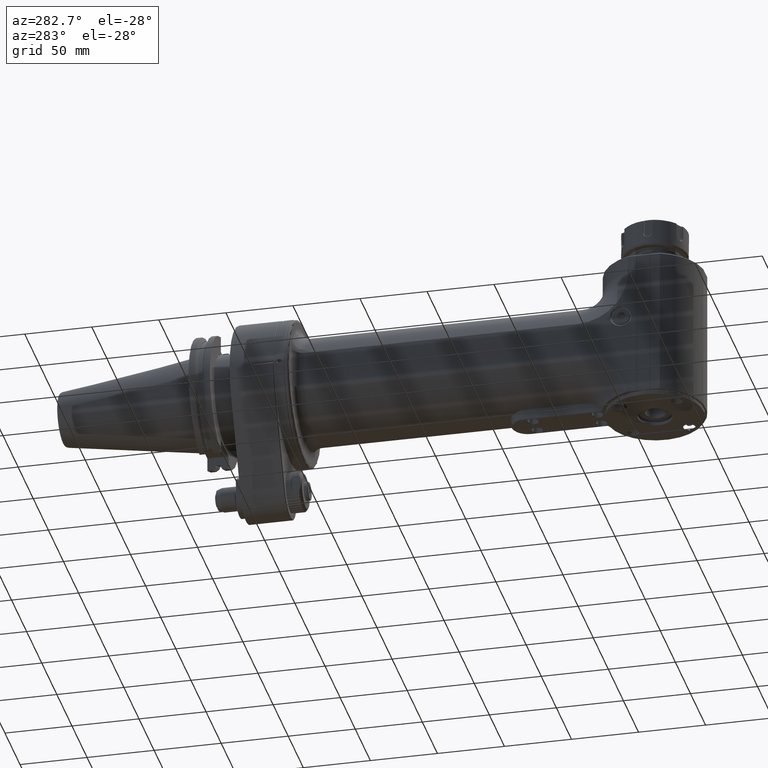
[diagram: clean part render]
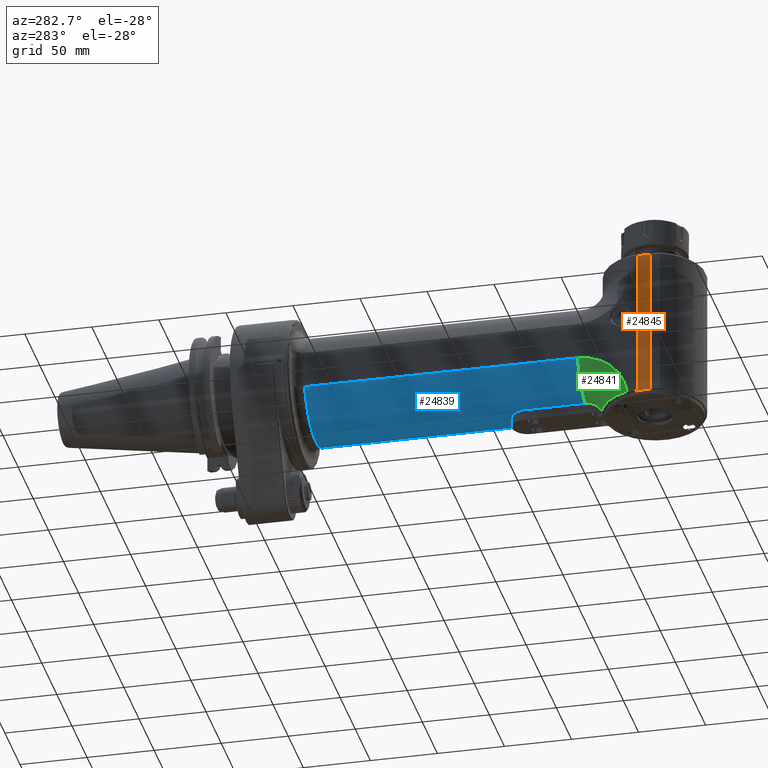
[diagram: same view with three faces highlighted in distinct colors, each labeled with its STEP entity id]
A machine part, auxiliary view with three faces highlighted in distinct colors.
Their STEP definitions:

[orange] entity #24845 — the highlighted planar face has unit normal (1, 0, 0).
#954=LINE('',#37207,#3367);
#957=LINE('',#37212,#3370);
#958=LINE('',#37214,#3371);
#959=LINE('',#37215,#3372);
#3367=VECTOR('',#29136,111.1);
#3370=VECTOR('',#29141,9.2);
#3371=VECTOR('',#29142,111.1);
#3372=VECTOR('',#29143,9.2);
#6182=FACE_OUTER_BOUND('',#7646,.T.);
#7646=EDGE_LOOP('',(#16770,#16771,#16772,#16773));
#10207=VERTEX_POINT('',#37205);
#10208=VERTEX_POINT('',#37206);
#10209=VERTEX_POINT('',#37211);
#10210=VERTEX_POINT('',#37213);
#12785=EDGE_CURVE('',#10207,#10208,#954,.T.);
#12788=EDGE_CURVE('',#10209,#10208,#957,.T.);
#12789=EDGE_CURVE('',#10210,#10209,#958,.T.);
#12790=EDGE_CURVE('',#10210,#10207,#959,.T.);
#16770=ORIENTED_EDGE('',*,*,#12785,.T.);
#16771=ORIENTED_EDGE('',*,*,#12788,.F.);
#16772=ORIENTED_EDGE('',*,*,#12789,.F.);
#16773=ORIENTED_EDGE('',*,*,#12790,.T.);
#23926=PLANE('',#26482);
#24845=ADVANCED_FACE('',(#6182),#23926,.F.);
#26482=AXIS2_PLACEMENT_3D('',#37210,#29139,#29140);
#29136=DIRECTION('',(0.,0.,-1.));
#29139=DIRECTION('center_axis',(1.,0.,0.));
#29140=DIRECTION('ref_axis',(0.,1.,0.));
#29141=DIRECTION('',(0.,1.,0.));
#29142=DIRECTION('',(0.,0.,-1.));
#29143=DIRECTION('',(0.,1.,0.));
#37205=CARTESIAN_POINT('',(-37.4,4.6,65.1));
#37206=CARTESIAN_POINT('',(-37.4,4.6,-46.));
#37207=CARTESIAN_POINT('',(-37.4,4.6,65.1));
#37210=CARTESIAN_POINT('Origin',(-37.4,272.,-67.1));
#37211=CARTESIAN_POINT('',(-37.4,-4.6,-46.));
#37212=CARTESIAN_POINT('',(-37.4,-4.6,-46.));
#37213=CARTESIAN_POINT('',(-37.4,-4.6,65.1));
#37214=CARTESIAN_POINT('',(-37.4,-4.6,65.1));
#37215=CARTESIAN_POINT('',(-37.4,-4.6,65.1));

[blue] entity #24839 — the highlighted cylindrical surface (partial cylindrical patch) has radius 40 mm, axis along (0, -1, 0).
#372=B_SPLINE_CURVE_WITH_KNOTS('',3,(#36826,#36827,#36828,#36829,#36830,
#36831,#36832,#36833,#36834,#36835,#36836,#36837,#36838,#36839,#36840,#36841,
#36842,#36843,#36844,#36845,#36846,#36847,#36848,#36849,#36850,#36851,#36852,
#36853,#36854,#36855,#36856,#36857,#36858,#36859,#36860,#36861,#36862,#36863,
#36864,#36865,#36866,#36867,#36868,#36869,#36870,#36871,#36872,#36873,#36874,
#36875,#36876,#36877,#36878,#36879,#36880,#36881,#36882,#36883,#36884,#36885,
#36886,#36887,#36888,#36889,#36890,#36891,#36892,#36893,#36894,#36895,#36896,
#36897,#36898,#36899,#36900,#36901,#36902,#36903,#36904,#36905,#36906,#36907,
#36908,#36909,#36910,#36911,#36912,#36913,#36914,#36915,#36916,#36917,#36918,
#36919,#36920,#36921,#36922,#36923,#36924,#36925,#36926,#36927,#36928,#36929,
#36930,#36931,#36932,#36933,#36934,#36935,#36936,#36937,#36938,#36939,#36940,
#36941,#36942,#36943,#36944,#36945,#36946,#36947,#36948,#36949,#36950,#36951,
#36952,#36953,#36954,#36955,#36956,#36957,#36958,#36959,#36960,#36961,#36962,
#36963,#36964,#36965,#36966,#36967,#36968,#36969,#36970,#36971,#36972,#36973,
#36974,#36975,#36976,#36977,#36978,#36979,#36980,#36981,#36982,#36983,#36984,
#36985,#36986,#36987,#36988,#36989,#36990,#36991,#36992,#36993,#36994,#36995,
#36996,#36997,#36998,#36999,#37000,#37001,#37002,#37003,#37004,#37005,#37006,
#37007,#37008,#37009,#37010,#37011,#37012,#37013,#37014,#37015,#37016,#37017,
#37018,#37019,#37020,#37021,#37022,#37023,#37024,#37025,#37026,#37027,#37028,
#37029,#37030,#37031,#37032,#37033),.UNSPECIFIED.,.F.,.F.,(4,3,3,3,3,3,
3,3,3,3,3,3,3,3,3,3,3,3,3,3,3,3,3,3,3,3,3,3,3,3,3,3,3,3,3,3,3,3,3,3,3,3,
3,3,3,3,3,3,3,3,3,3,3,3,3,3,3,3,3,3,3,3,3,3,3,3,3,3,3,4),(0.,0.01449275362319,
0.02898550724638,0.04347826086957,0.05797101449275,0.07246376811594,0.08695652173913,
0.1014492753623,0.1159420289855,0.1304347826087,0.1449275362319,0.1594202898551,
0.1739130434783,0.1884057971014,0.2028985507246,0.2173913043478,0.231884057971,
0.2463768115942,0.2608695652174,0.2753623188406,0.2898550724638,0.304347826087,
0.3188405797101,0.3333333333333,0.3478260869565,0.3623188405797,0.3768115942029,
0.3913043478261,0.4057971014493,0.4202898550725,0.4347826086957,0.4492753623188,
0.463768115942,0.4782608695652,0.4927536231884,0.5072463768116,0.5217391304348,
0.536231884058,0.5507246376812,0.5652173913043,0.5797101449275,0.5942028985507,
0.6086956521739,0.6231884057971,0.6376811594203,0.6521739130435,0.6666666666667,
0.6811594202899,0.695652173913,0.7101449275362,0.7246376811594,0.7391304347826,
0.7536231884058,0.768115942029,0.7826086956522,0.7971014492754,0.8115942028986,
0.8260869565217,0.8405797101449,0.8550724637681,0.8695652173913,0.8840579710145,
0.8985507246377,0.9130434782609,0.9275362318841,0.9420289855072,0.9565217391304,
0.9710144927536,0.9855072463768,1.),.UNSPECIFIED.);
#937=LINE('',#37037,#3350);
#940=LINE('',#37045,#3353);
#941=LINE('',#37049,#3354);
#942=LINE('',#37053,#3355);
#3350=VECTOR('',#29091,45.5);
#3353=VECTOR('',#29098,45.5);
#3354=VECTOR('',#29101,203.5);
#3355=VECTOR('',#29104,203.5);
#5717=CYLINDRICAL_SURFACE('',#26469,40.);
#6176=FACE_OUTER_BOUND('',#7639,.T.);
#7639=EDGE_LOOP('',(#16734,#16735,#16736,#16737,#16738,#16739,#16740,#16741));
#9229=CIRCLE('',#26470,40.);
#9230=CIRCLE('',#26471,40.);
#9231=CIRCLE('',#26472,40.);
#10185=VERTEX_POINT('',#36823);
#10186=VERTEX_POINT('',#36825);
#10187=VERTEX_POINT('',#37036);
#10190=VERTEX_POINT('',#37044);
#10191=VERTEX_POINT('',#37046);
#10192=VERTEX_POINT('',#37048);
#10193=VERTEX_POINT('',#37050);
#10194=VERTEX_POINT('',#37052);
#12757=EDGE_CURVE('',#10186,#10185,#372,.T.);
#12759=EDGE_CURVE('',#10186,#10187,#937,.T.);
#12763=EDGE_CURVE('',#10185,#10190,#940,.T.);
#12764=EDGE_CURVE('',#10191,#10190,#9229,.T.);
#12765=EDGE_CURVE('',#10192,#10191,#941,.T.);
#12766=EDGE_CURVE('',#10192,#10193,#9230,.T.);
#12767=EDGE_CURVE('',#10193,#10194,#942,.T.);
#12768=EDGE_CURVE('',#10187,#10194,#9231,.T.);
#16734=ORIENTED_EDGE('',*,*,#12763,.T.);
#16735=ORIENTED_EDGE('',*,*,#12764,.F.);
#16736=ORIENTED_EDGE('',*,*,#12765,.F.);
#16737=ORIENTED_EDGE('',*,*,#12766,.T.);
#16738=ORIENTED_EDGE('',*,*,#12767,.T.);
#16739=ORIENTED_EDGE('',*,*,#12768,.F.);
#16740=ORIENTED_EDGE('',*,*,#12759,.F.);
#16741=ORIENTED_EDGE('',*,*,#12757,.T.);
#24839=ADVANCED_FACE('',(#6176),#5717,.T.);
#26469=AXIS2_PLACEMENT_3D('',#37043,#29096,#29097);
#26470=AXIS2_PLACEMENT_3D('',#37047,#29099,#29100);
#26471=AXIS2_PLACEMENT_3D('',#37051,#29102,#29103);
#26472=AXIS2_PLACEMENT_3D('',#37054,#29105,#29106);
#29091=DIRECTION('',(0.,-1.,0.));
#29096=DIRECTION('center_axis',(0.,-1.,0.));
#29097=DIRECTION('ref_axis',(-1.,0.,0.));
#29098=DIRECTION('',(0.,-1.,0.));
#29099=DIRECTION('center_axis',(0.,-1.,0.));
#29100=DIRECTION('ref_axis',(-0.937499999999992,0.,-0.347985272676897));
#29101=DIRECTION('',(0.,-1.,0.));
#29102=DIRECTION('center_axis',(0.,-1.,0.));
#29103=DIRECTION('ref_axis',(-0.937499999999992,0.,-0.347985272676897));
#29104=DIRECTION('',(0.,-1.,0.));
#29105=DIRECTION('center_axis',(0.,-1.,0.));
#29106=DIRECTION('ref_axis',(0.300000000000013,0.,-0.953939201416942));
#36823=CARTESIAN_POINT('',(-12.,95.,-38.15756805668));
#36825=CARTESIAN_POINT('',(12.,95.,-38.15756805668));
#36826=CARTESIAN_POINT('Ctrl Pts',(12.,95.,-38.15756805668));
#36827=CARTESIAN_POINT('Ctrl Pts',(12.,95.17828162213,-38.15756805668));
#36828=CARTESIAN_POINT('Ctrl Pts',(11.9960269253425,95.3566534644559,-38.158817857315));
#36829=CARTESIAN_POINT('Ctrl Pts',(11.9880689181919,95.5349800114774,-38.1613181587408));
#36830=CARTESIAN_POINT('Ctrl Pts',(11.9801109110414,95.713306558499,-38.1638184601667));
#36831=CARTESIAN_POINT('Ctrl Pts',(11.9681654460002,95.8915877905336,-38.1675692623833));
#36832=CARTESIAN_POINT('Ctrl Pts',(11.9522437067562,96.0695187582768,-38.1725538885483));
#36833=CARTESIAN_POINT('Ctrl Pts',(11.9363219675122,96.2474497260199,-38.1775385147133));
#36834=CARTESIAN_POINT('Ctrl Pts',(11.9164295127498,96.4250309066801,-38.1837569648267));
#36835=CARTESIAN_POINT('Ctrl Pts',(11.8925413737978,96.6023294519251,-38.19119610162));
#36836=CARTESIAN_POINT('Ctrl Pts',(11.8686532348459,96.7796279971699,-38.1986352384133));
#36837=CARTESIAN_POINT('Ctrl Pts',(11.8407651750236,96.9566432438988,-38.2072950618867));
#36838=CARTESIAN_POINT('Ctrl Pts',(11.8088802922367,97.1331540599835,-38.217147280295));
#36839=CARTESIAN_POINT('Ctrl Pts',(11.7769954094498,97.3096648760684,-38.2269994987033));
#36840=CARTESIAN_POINT('Ctrl Pts',(11.7411137874494,97.4856714211916,-38.2380441120467));
#36841=CARTESIAN_POINT('Ctrl Pts',(11.7012515291149,97.6609608513441,-38.2502380731467));
#36842=CARTESIAN_POINT('Ctrl Pts',(11.6613892707804,97.8362502814966,-38.2624320342467));
#36843=CARTESIAN_POINT('Ctrl Pts',(11.6175502526625,98.010823366892,-38.2757753431034));
#36844=CARTESIAN_POINT('Ctrl Pts',(11.5696828194871,98.184719682557,-38.2902394802717));
#36845=CARTESIAN_POINT('Ctrl Pts',(11.5218153863117,98.3586159982218,-38.30470361744));
#36846=CARTESIAN_POINT('Ctrl Pts',(11.4699135484473,98.5318339032932,-38.32028858292));
#36847=CARTESIAN_POINT('Ctrl Pts',(11.4140391213967,98.7040128152079,-38.3369235976933));
#36848=CARTESIAN_POINT('Ctrl Pts',(11.3581646943461,98.876191727123,-38.3535586124666));
#36849=CARTESIAN_POINT('Ctrl Pts',(11.2983217555625,99.0473330702936,-38.3712436765333));
#36850=CARTESIAN_POINT('Ctrl Pts',(11.2344982950864,99.2173508340782,-38.38992117806));
#36851=CARTESIAN_POINT('Ctrl Pts',(11.1706748346103,99.3873685978628,-38.4085986795867));
#36852=CARTESIAN_POINT('Ctrl Pts',(11.1028702037919,99.5562623820452,-38.4282686185733));
#36853=CARTESIAN_POINT('Ctrl Pts',(11.0310843904433,99.7238942802436,-38.4488644457933));
#36854=CARTESIAN_POINT('Ctrl Pts',(10.9592985770947,99.8915261784419,-38.4694602730133));
#36855=CARTESIAN_POINT('Ctrl Pts',(10.8835279565226,100.057894767174,-38.4909819884667));
#36856=CARTESIAN_POINT('Ctrl Pts',(10.8038932070683,100.222632628308,-38.5133209626217));
#36857=CARTESIAN_POINT('Ctrl Pts',(10.7242584576139,100.387370489442,-38.5356599367767));
#36858=CARTESIAN_POINT('Ctrl Pts',(10.6407649171188,100.55048017883,-38.5588161696333));
#36859=CARTESIAN_POINT('Ctrl Pts',(10.5533730950184,100.711945055525,-38.5827204369667));
#36860=CARTESIAN_POINT('Ctrl Pts',(10.465981272918,100.873409932221,-38.6066247043001));
#36861=CARTESIAN_POINT('Ctrl Pts',(10.3746865753418,101.033227402167,-38.6312770061101));
#36862=CARTESIAN_POINT('Ctrl Pts',(10.2796188402135,101.191077167984,-38.6565574838218));
#36863=CARTESIAN_POINT('Ctrl Pts',(10.1845511050859,101.348926933799,-38.6818379615334));
#36864=CARTESIAN_POINT('Ctrl Pts',(10.0857107981244,101.504809462694,-38.7077466151466));
#36865=CARTESIAN_POINT('Ctrl Pts',(9.98323454553868,101.658455377095,-38.7341584135848));
#36866=CARTESIAN_POINT('Ctrl Pts',(9.88075829295222,101.812101291497,-38.7605702120232));
#36867=CARTESIAN_POINT('Ctrl Pts',(9.7746493326664,101.963512598043,-38.7874851552866));
#36868=CARTESIAN_POINT('Ctrl Pts',(9.66491261451266,102.11262709228,-38.8148098559516));
#36869=CARTESIAN_POINT('Ctrl Pts',(9.55517589635892,102.261741586517,-38.8421345566167));
#36870=CARTESIAN_POINT('Ctrl Pts',(9.44180625818103,102.408555499324,-38.8698690146833));
#36871=CARTESIAN_POINT('Ctrl Pts',(9.32507173377688,102.552684103014,-38.8978538888733));
#36872=CARTESIAN_POINT('Ctrl Pts',(9.20833720937273,102.696812706703,-38.9258387630633));
#36873=CARTESIAN_POINT('Ctrl Pts',(9.08824167597421,102.838259257739,-38.9540740533767));
#36874=CARTESIAN_POINT('Ctrl Pts',(8.96486976302807,102.976911064563,-38.9824461794317));
#36875=CARTESIAN_POINT('Ctrl Pts',(8.84149785008193,103.115562871387,-39.0108183054867));
#36876=CARTESIAN_POINT('Ctrl Pts',(8.71484863845316,103.251418911952,-39.0393272672833));
#36877=CARTESIAN_POINT('Ctrl Pts',(8.58507075137073,103.384304395354,-39.0678456047133));
#36878=CARTESIAN_POINT('Ctrl Pts',(8.4552928642883,103.517189878756,-39.0963639421433));
#36879=CARTESIAN_POINT('Ctrl Pts',(8.3223838782151,103.647102625904,-39.1248916552067));
#36880=CARTESIAN_POINT('Ctrl Pts',(8.18666389027169,103.773741183083,-39.153269778495));
#36881=CARTESIAN_POINT('Ctrl Pts',(8.05094390232828,103.900379740261,-39.1816479017833));
#36882=CARTESIAN_POINT('Ctrl Pts',(7.91241716777237,104.023748618714,-39.2098764352967));
#36883=CARTESIAN_POINT('Ctrl Pts',(7.77112151101372,104.143832372756,-39.237860166695));
#36884=CARTESIAN_POINT('Ctrl Pts',(7.62982585425507,104.263916126798,-39.2658438980933));
#36885=CARTESIAN_POINT('Ctrl Pts',(7.48575798333567,104.380710745131,-39.2935828273767));
#36886=CARTESIAN_POINT('Ctrl Pts',(7.33921774692472,104.493991935073,-39.3209344098417));
#36887=CARTESIAN_POINT('Ctrl Pts',(7.19267751051377,104.607273125015,-39.3482859923067));
#36888=CARTESIAN_POINT('Ctrl Pts',(7.04366552748774,104.71704194788,-39.3752502279535));
#36889=CARTESIAN_POINT('Ctrl Pts',(6.8924394329943,104.823150139467,-39.4017040070902));
#36890=CARTESIAN_POINT('Ctrl Pts',(6.7412133385019,104.929258331053,-39.4281577862267));
#36891=CARTESIAN_POINT('Ctrl Pts',(6.58777543674959,105.031708946563,-39.4541011088533));
#36892=CARTESIAN_POINT('Ctrl Pts',(6.43218071700992,105.130501035177,-39.4794509995248));
#36893=CARTESIAN_POINT('Ctrl Pts',(6.27658599726919,105.229293123793,-39.5048008901966));
#36894=CARTESIAN_POINT('Ctrl Pts',(6.11883121708451,105.324421641927,-39.5295573489133));
#36895=CARTESIAN_POINT('Ctrl Pts',(5.95930871909655,105.415691988077,-39.5535919935266));
#36896=CARTESIAN_POINT('Ctrl Pts',(5.79978622110859,105.506962334228,-39.57762663814));
#36897=CARTESIAN_POINT('Ctrl Pts',(5.63849872005813,105.594379407782,-39.60093946865));
#36898=CARTESIAN_POINT('Ctrl Pts',(5.47552913375442,105.677948337832,-39.6234599789733));
#36899=CARTESIAN_POINT('Ctrl Pts',(5.31255954745072,105.761517267882,-39.6459804892967));
#36900=CARTESIAN_POINT('Ctrl Pts',(5.14790719300999,105.841236402417,-39.6677086794333));
#36901=CARTESIAN_POINT('Ctrl Pts',(4.981754998209,105.917056248725,-39.688564059915));
#36902=CARTESIAN_POINT('Ctrl Pts',(4.81560280340801,105.992876095033,-39.7094194403967));
#36903=CARTESIAN_POINT('Ctrl Pts',(4.64794960348165,106.064794429742,-39.7294020112233));
#36904=CARTESIAN_POINT('Ctrl Pts',(4.47913582638464,106.13271495408,-39.7484256574883));
#36905=CARTESIAN_POINT('Ctrl Pts',(4.31032204928762,106.200635478418,-39.7674493037533));
#36906=CARTESIAN_POINT('Ctrl Pts',(4.14034997054097,106.264563722507,-39.7855140254567));
#36907=CARTESIAN_POINT('Ctrl Pts',(3.969192266983,106.324553534145,-39.8025817347033));
#36908=CARTESIAN_POINT('Ctrl Pts',(3.79803456342502,106.384543345783,-39.81964944395));
#36909=CARTESIAN_POINT('Ctrl Pts',(3.62568957130576,106.440589761559,-39.83572014074));
#36910=CARTESIAN_POINT('Ctrl Pts',(3.4524536481189,106.492630847965,-39.8507285229217));
#36911=CARTESIAN_POINT('Ctrl Pts',(3.27921772493205,106.544671934371,-39.8657369051033));
#36912=CARTESIAN_POINT('Ctrl Pts',(3.10509125375529,106.592709465304,-39.8796829726767));
#36913=CARTESIAN_POINT('Ctrl Pts',(2.93025913627618,106.636734137818,-39.89252538251));
#36914=CARTESIAN_POINT('Ctrl Pts',(2.75542701879707,106.680758810333,-39.9053677923434));
#36915=CARTESIAN_POINT('Ctrl Pts',(2.57989010793835,106.720773474308,-39.9171065444367));
#36916=CARTESIAN_POINT('Ctrl Pts',(2.4036365211513,106.756807877744,-39.9277163318217));
#36917=CARTESIAN_POINT('Ctrl Pts',(2.22738293436548,106.79284228118,-39.9383261192067));
#36918=CARTESIAN_POINT('Ctrl Pts',(2.05041149926954,106.824890925715,-39.9478069418833));
#36919=CARTESIAN_POINT('Ctrl Pts',(1.87307734365465,106.852914462894,-39.9561206983966));
#36920=CARTESIAN_POINT('Ctrl Pts',(1.69574318803853,106.880938000074,-39.96443445491));
#36921=CARTESIAN_POINT('Ctrl Pts',(1.51804712544984,106.904941954382,-39.97158114526));
#36922=CARTESIAN_POINT('Ctrl Pts',(1.3399751368083,106.924951431043,-39.9775495326133));
#36923=CARTESIAN_POINT('Ctrl Pts',(1.16190314816675,106.944960907704,-39.9835179199667));
#36924=CARTESIAN_POINT('Ctrl Pts',(0.983455104694678,106.960973552808,-39.9883080043233));
#36925=CARTESIAN_POINT('Ctrl Pts',(0.804770955318886,106.972983910015,-39.9919034769483));
#36926=CARTESIAN_POINT('Ctrl Pts',(0.626086805943093,106.984994267222,-39.9954989495733));
#36927=CARTESIAN_POINT('Ctrl Pts',(0.447166273153922,106.993000241197,-39.9978998104667));
#36928=CARTESIAN_POINT('Ctrl Pts',(0.268290731449832,106.997000461925,-39.9991002409233));
#36929=CARTESIAN_POINT('Ctrl Pts',(0.0894151897457412,107.001000682653,
-40.00030067138));
#36930=CARTESIAN_POINT('Ctrl Pts',(-0.0894151793028224,107.001000682723,
-40.0003006714));
#36931=CARTESIAN_POINT('Ctrl Pts',(-0.268290720536314,106.997000462169,
-39.9991002409983));
#36932=CARTESIAN_POINT('Ctrl Pts',(-0.447166261769805,106.993000241614,
-39.9978998105967));
#36933=CARTESIAN_POINT('Ctrl Pts',(-0.626086793614925,106.984994267868,
-39.9954989497733));
#36934=CARTESIAN_POINT('Ctrl Pts',(-0.804770943116894,106.972983910835,
-39.991903477195));
#36935=CARTESIAN_POINT('Ctrl Pts',(-0.983455092618864,106.960973553802,
-39.9883080046167));
#36936=CARTESIAN_POINT('Ctrl Pts',(-1.16190313728617,106.944960908773,-39.9835179202833));
#36937=CARTESIAN_POINT('Ctrl Pts',(-1.33997512666296,106.924951432183,-39.9775495329567));
#36938=CARTESIAN_POINT('Ctrl Pts',(-1.51804711603974,106.904941955593,-39.97158114563));
#36939=CARTESIAN_POINT('Ctrl Pts',(-1.69574317890995,106.880938001411,-39.96443445531));
#36940=CARTESIAN_POINT('Ctrl Pts',(-1.8730773367727,106.852914463982,-39.9561206987199));
#36941=CARTESIAN_POINT('Ctrl Pts',(-2.05041149463423,106.824890926553,-39.94780694213));
#36942=CARTESIAN_POINT('Ctrl Pts',(-2.22738293393271,106.79284228135,-39.93832611927));
#36943=CARTESIAN_POINT('Ctrl Pts',(-2.40363652638662,106.756807876674,-39.9277163315034));
#36944=CARTESIAN_POINT('Ctrl Pts',(-2.57989011884175,106.720773471997,-39.9171065437367));
#36945=CARTESIAN_POINT('Ctrl Pts',(-2.75542703681601,106.680758806092,-39.9053677910634));
#36946=CARTESIAN_POINT('Ctrl Pts',(-2.93025915483864,106.636734133144,-39.8925253811484));
#36947=CARTESIAN_POINT('Ctrl Pts',(-3.10509127286127,106.592709460196,-39.8796829712333));
#36948=CARTESIAN_POINT('Ctrl Pts',(-3.27921773809124,106.544671930669,-39.8657369040767));
#36949=CARTESIAN_POINT('Ctrl Pts',(-3.45245366340634,106.492630843372,-39.8507285216));
#36950=CARTESIAN_POINT('Ctrl Pts',(-3.62568958872144,106.440589756076,-39.8357201391233));
#36951=CARTESIAN_POINT('Ctrl Pts',(-3.79803459091333,106.384543336687,-39.8196494413267));
#36952=CARTESIAN_POINT('Ctrl Pts',(-3.96919229872332,106.32455352302,-39.80258173154));
#36953=CARTESIAN_POINT('Ctrl Pts',(-4.14035000653331,106.264563709354,-39.7855140217533));
#36954=CARTESIAN_POINT('Ctrl Pts',(-4.31032208381251,106.200635465071,-39.7674492999767));
#36955=CARTESIAN_POINT('Ctrl Pts',(-4.47913585725728,106.132714941659,-39.7484256540083));
#36956=CARTESIAN_POINT('Ctrl Pts',(-4.64794963070204,106.064794418247,-39.72940200804));
#36957=CARTESIAN_POINT('Ctrl Pts',(-4.81560282484303,105.992876085756,-39.70941943788));
#36958=CARTESIAN_POINT('Ctrl Pts',(-4.98175502566258,105.917056236197,-39.68856405647));
#36959=CARTESIAN_POINT('Ctrl Pts',(-5.14790722648213,105.841236386638,-39.66770867506));
#36960=CARTESIAN_POINT('Ctrl Pts',(-5.31255959845805,105.761517242722,-39.6459804824));
#36961=CARTESIAN_POINT('Ctrl Pts',(-5.475529185434,105.677948311331,-39.6234599718333));
#36962=CARTESIAN_POINT('Ctrl Pts',(-5.63849877240996,105.59437937994,-39.6009394612667));
#36963=CARTESIAN_POINT('Ctrl Pts',(-5.79978625769957,105.506962313916,-39.5776266327933));
#36964=CARTESIAN_POINT('Ctrl Pts',(-5.95930874974898,105.41569197054,-39.55359198891));
#36965=CARTESIAN_POINT('Ctrl Pts',(-6.11883124179839,105.324421627164,-39.5295573450266));
#36966=CARTESIAN_POINT('Ctrl Pts',(-6.27658602558006,105.229293106589,-39.5048008857332));
#36967=CARTESIAN_POINT('Ctrl Pts',(-6.43218075282007,105.13050101244,-39.4794509936882));
#36968=CARTESIAN_POINT('Ctrl Pts',(-6.58777548005901,105.031708918292,-39.4541011016433));
#36969=CARTESIAN_POINT('Ctrl Pts',(-6.74121339309429,104.929258293924,-39.4281577768467));
#36970=CARTESIAN_POINT('Ctrl Pts',(-6.89243948416845,104.82315010356,-39.4017039981419));
#36971=CARTESIAN_POINT('Ctrl Pts',(-7.04366557524365,104.717041913196,-39.3752502194368));
#36972=CARTESIAN_POINT('Ctrl Pts',(-7.19267754065455,104.607273102377,-39.3482859868234));
#36973=CARTESIAN_POINT('Ctrl Pts',(-7.33921777376762,104.493991914322,-39.3209344048367));
#36974=CARTESIAN_POINT('Ctrl Pts',(-7.48575800688069,104.380710726267,-39.29358282285));
#36975=CARTESIAN_POINT('Ctrl Pts',(-7.62982588823791,104.263916098922,-39.26584389149));
#36976=CARTESIAN_POINT('Ctrl Pts',(-7.77112154880549,104.143832340638,-39.2378601592117));
#36977=CARTESIAN_POINT('Ctrl Pts',(-7.91241720937307,104.023748582353,-39.2098764269333));
#36978=CARTESIAN_POINT('Ctrl Pts',(-8.05094394142921,103.900379704771,-39.1816478937367));
#36979=CARTESIAN_POINT('Ctrl Pts',(-8.18666392464632,103.773741151008,-39.1532697713083));
#36980=CARTESIAN_POINT('Ctrl Pts',(-8.32238390786343,103.647102597245,-39.12489164888));
#36981=CARTESIAN_POINT('Ctrl Pts',(-8.45529288709527,103.517189856209,-39.09636393722));
#36982=CARTESIAN_POINT('Ctrl Pts',(-8.58507077678304,103.384304369334,-39.0678455991333));
#36983=CARTESIAN_POINT('Ctrl Pts',(-8.71484866647082,103.251418882458,-39.0393272610467));
#36984=CARTESIAN_POINT('Ctrl Pts',(-8.84149788964013,103.115562828316,-39.0108182965333));
#36985=CARTESIAN_POINT('Ctrl Pts',(-8.96486980265503,102.976911020028,-38.98244617032));
#36986=CARTESIAN_POINT('Ctrl Pts',(-9.08824171566993,102.83825921174,-38.9540740441067));
#36987=CARTESIAN_POINT('Ctrl Pts',(-9.20833723831469,102.696812671925,-38.9258387561933));
#36988=CARTESIAN_POINT('Ctrl Pts',(-9.3250717582741,102.552684072768,-38.8978538829983));
#36989=CARTESIAN_POINT('Ctrl Pts',(-9.44180627823351,102.40855547361,-38.8698690098033));
#36990=CARTESIAN_POINT('Ctrl Pts',(-9.55517591787385,102.26174155834,-38.8421345513267));
#36991=CARTESIAN_POINT('Ctrl Pts',(-9.66491263862374,102.112627059517,-38.8148098499516));
#36992=CARTESIAN_POINT('Ctrl Pts',(-9.77464935937362,101.963512560694,-38.7874851485766));
#36993=CARTESIAN_POINT('Ctrl Pts',(-9.8807583233312,101.812101247372,-38.7605702043032));
#36994=CARTESIAN_POINT('Ctrl Pts',(-9.98323457400495,101.658455334414,-38.7341584062515));
#36995=CARTESIAN_POINT('Ctrl Pts',(-10.085710824678,101.504809421458,-38.7077466081999));
#36996=CARTESIAN_POINT('Ctrl Pts',(-10.1845511245575,101.348926902517,-38.6818379563701));
#36997=CARTESIAN_POINT('Ctrl Pts',(-10.2796188583828,101.191077137815,-38.6565574789868));
#36998=CARTESIAN_POINT('Ctrl Pts',(-10.3746865922088,101.033227373113,-38.6312770016035));
#36999=CARTESIAN_POINT('Ctrl Pts',(-10.4659812937754,100.873409895151,-38.6066246986667));
#37000=CARTESIAN_POINT('Ctrl Pts',(-10.5533731167365,100.711945015399,-38.58272043103));
#37001=CARTESIAN_POINT('Ctrl Pts',(-10.6407649396976,100.550480135647,-38.5588161633933));
#37002=CARTESIAN_POINT('Ctrl Pts',(-10.7242584782041,100.387370448299,-38.5356599310567));
#37003=CARTESIAN_POINT('Ctrl Pts',(-10.8038932251043,100.222632590997,-38.513320957565));
#37004=CARTESIAN_POINT('Ctrl Pts',(-10.8835279720044,100.057894733695,-38.4909819840733));
#37005=CARTESIAN_POINT('Ctrl Pts',(-10.9592985895441,99.8915261506436,-38.4694602694267));
#37006=CARTESIAN_POINT('Ctrl Pts',(-11.0310844034282,99.7238942499216,-38.4488644420683));
#37007=CARTESIAN_POINT('Ctrl Pts',(-11.1028702173123,99.5562623491996,-38.42826861471));
#37008=CARTESIAN_POINT('Ctrl Pts',(-11.1706748517994,99.3873685540938,-38.40859867464));
#37009=CARTESIAN_POINT('Ctrl Pts',(-11.2344983115762,99.2173507901515,-38.389921173235));
#37010=CARTESIAN_POINT('Ctrl Pts',(-11.298321771353,99.0473330262092,-38.37124367183));
#37011=CARTESIAN_POINT('Ctrl Pts',(-11.3581647056157,98.87619169385,-38.35355860909));
#37012=CARTESIAN_POINT('Ctrl Pts',(-11.4140391305857,98.7040127868919,-38.3369235949567));
#37013=CARTESIAN_POINT('Ctrl Pts',(-11.4699135555556,98.5318338799338,-38.3202885808233));
#37014=CARTESIAN_POINT('Ctrl Pts',(-11.5218153934409,98.3586159738646,-38.3047036152967));
#37015=CARTESIAN_POINT('Ctrl Pts',(-11.5696828267145,98.1847196563006,-38.290239478085));
#37016=CARTESIAN_POINT('Ctrl Pts',(-11.6175502599881,98.0108233387365,-38.2757753408733));
#37017=CARTESIAN_POINT('Ctrl Pts',(-11.6613892782825,97.8362502505305,-38.2624320319766));
#37018=CARTESIAN_POINT('Ctrl Pts',(-11.7012515357565,97.6609608221387,-38.2502380711116));
#37019=CARTESIAN_POINT('Ctrl Pts',(-11.7411137932301,97.4856713937481,-38.2380441102466));
#37020=CARTESIAN_POINT('Ctrl Pts',(-11.7769954135389,97.3096648550097,-38.2269994974134));
#37021=CARTESIAN_POINT('Ctrl Pts',(-11.8088802955736,97.133154041511,-38.2171472792601));
#37022=CARTESIAN_POINT('Ctrl Pts',(-11.8407651776084,96.9566432280111,-38.2072950611067));
#37023=CARTESIAN_POINT('Ctrl Pts',(-11.8686532374061,96.7796279800309,-38.1986352376334));
#37024=CARTESIAN_POINT('Ctrl Pts',(-11.8925413760258,96.6023294353889,-38.1911961009283));
#37025=CARTESIAN_POINT('Ctrl Pts',(-11.9164295146456,96.4250308907469,-38.1837569642233));
#37026=CARTESIAN_POINT('Ctrl Pts',(-11.936321968878,96.2474497125556,-38.1775385142867));
#37027=CARTESIAN_POINT('Ctrl Pts',(-11.9522437077159,96.0695187475519,-38.1725538882517));
#37028=CARTESIAN_POINT('Ctrl Pts',(-11.9681654465539,95.8915877825482,-38.1675692622167));
#37029=CARTESIAN_POINT('Ctrl Pts',(-11.9801109113086,95.7133065535255,-38.1638184600833));
#37030=CARTESIAN_POINT('Ctrl Pts',(-11.9880689183273,95.5349800084433,-38.1613181586992));
#37031=CARTESIAN_POINT('Ctrl Pts',(-11.9960269253461,95.356653463361,-38.158817857315));
#37032=CARTESIAN_POINT('Ctrl Pts',(-12.,95.1782816219,-38.15756805668));
#37033=CARTESIAN_POINT('Ctrl Pts',(-12.,95.,-38.15756805668));
#37036=CARTESIAN_POINT('',(12.,49.5,-38.15756805668));
#37037=CARTESIAN_POINT('',(12.,95.,-38.15756805668));
#37043=CARTESIAN_POINT('Origin',(0.,311.85,0.));
#37044=CARTESIAN_POINT('',(-12.,49.5,-38.15756805668));
#37045=CARTESIAN_POINT('',(-12.,95.,-38.15756805668));
#37046=CARTESIAN_POINT('',(-37.5,49.5,-13.91941090708));
#37047=CARTESIAN_POINT('Origin',(-1.515621780731E-14,49.5,0.));
#37048=CARTESIAN_POINT('',(-37.5,253.,-13.91941090708));
#37049=CARTESIAN_POINT('',(-37.5,253.,-13.91941090708));
#37050=CARTESIAN_POINT('',(37.5,253.,-13.91941090708));
#37051=CARTESIAN_POINT('Origin',(0.,253.,0.));
#37052=CARTESIAN_POINT('',(37.5,49.5,-13.91941090708));
#37053=CARTESIAN_POINT('',(37.5,253.,-13.91941090708));
#37054=CARTESIAN_POINT('Origin',(-1.515621780731E-14,49.5,0.));

[green] entity #24841 — the highlighted toroidal blend (fillet) surface has major radius 51.5 mm and minor (blend) radius 40 mm.
#373=B_SPLINE_CURVE_WITH_KNOTS('',3,(#37063,#37064,#37065,#37066,#37067,
#37068,#37069,#37070,#37071,#37072,#37073,#37074,#37075,#37076,#37077,#37078,
#37079,#37080,#37081,#37082,#37083,#37084,#37085,#37086,#37087,#37088,#37089,
#37090,#37091,#37092,#37093,#37094,#37095,#37096,#37097,#37098,#37099,#37100,
#37101,#37102,#37103,#37104,#37105,#37106,#37107,#37108,#37109,#37110,#37111,
#37112,#37113,#37114,#37115,#37116,#37117,#37118,#37119,#37120,#37121,#37122,
#37123,#37124,#37125,#37126,#37127,#37128,#37129,#37130,#37131,#37132,#37133,
#37134,#37135,#37136,#37137,#37138,#37139,#37140,#37141,#37142,#37143,#37144,
#37145,#37146,#37147,#37148,#37149,#37150,#37151,#37152,#37153,#37154,#37155,
#37156,#37157,#37158,#37159,#37160,#37161,#37162,#37163,#37164,#37165,#37166,
#37167,#37168,#37169,#37170,#37171,#37172,#37173,#37174,#37175,#37176,#37177,
#37178,#37179,#37180),.UNSPECIFIED.,.F.,.F.,(4,3,3,3,3,3,3,3,3,3,3,3,3,
3,3,3,3,3,3,3,3,3,3,3,3,3,3,3,3,3,3,3,3,3,3,3,3,3,3,4),(0.,0.03703703703704,
0.07407407407407,0.1111111111111,0.1481481481481,0.1851851851852,0.2222222222222,
0.2592592592593,0.2962962962963,0.3333333333333,0.3703703703704,0.4074074074074,
0.4444444444444,0.47597035624973,0.4814814814815,0.5185185185185,0.550122863752613,
0.5555555555556,0.586719781505167,0.5925925925926,0.6296296296296,0.650364713656578,
0.6666666666667,0.68737393296017,0.7037037037037,0.734318811121706,0.7407407407407,
0.763253454215781,0.7777777777778,0.802622956413852,0.8148148148148,0.838394526596626,
0.8518518518519,0.8888888888889,0.922682052927122,0.9259259259259,0.958045077697944,
0.962962962963,0.997855183561829,1.),.UNSPECIFIED.);
#839=TOROIDAL_SURFACE('',#26475,51.5,40.);
#6178=FACE_OUTER_BOUND('',#7641,.T.);
#7641=EDGE_LOOP('',(#16748,#16749,#16750,#16751));
#9229=CIRCLE('',#26470,40.);
#9232=CIRCLE('',#26474,13.34243194332);
#9233=CIRCLE('',#26476,37.58058909292);
#10190=VERTEX_POINT('',#37044);
#10191=VERTEX_POINT('',#37046);
#10196=VERTEX_POINT('',#37058);
#10197=VERTEX_POINT('',#37062);
#12764=EDGE_CURVE('',#10191,#10190,#9229,.T.);
#12771=EDGE_CURVE('',#10190,#10196,#9232,.T.);
#12772=EDGE_CURVE('',#10197,#10196,#373,.T.);
#12773=EDGE_CURVE('',#10191,#10197,#9233,.T.);
#16748=ORIENTED_EDGE('',*,*,#12771,.T.);
#16749=ORIENTED_EDGE('',*,*,#12772,.F.);
#16750=ORIENTED_EDGE('',*,*,#12773,.F.);
#16751=ORIENTED_EDGE('',*,*,#12764,.T.);
#24841=ADVANCED_FACE('',(#6178),#839,.T.);
#26470=AXIS2_PLACEMENT_3D('',#37047,#29099,#29100);
#26474=AXIS2_PLACEMENT_3D('',#37060,#29111,#29112);
#26475=AXIS2_PLACEMENT_3D('',#37061,#29113,#29114);
#26476=AXIS2_PLACEMENT_3D('',#37181,#29115,#29116);
#29099=DIRECTION('center_axis',(0.,-1.,0.));
#29100=DIRECTION('ref_axis',(-0.937499999999992,0.,-0.347985272676897));
#29111=DIRECTION('center_axis',(1.,0.,0.));
#29112=DIRECTION('ref_axis',(0.,0.,1.));
#29113=DIRECTION('center_axis',(1.,0.,0.));
#29114=DIRECTION('ref_axis',(0.,1.,0.));
#29115=DIRECTION('center_axis',(1.,0.,0.));
#29116=DIRECTION('ref_axis',(0.,0.,1.));
#37044=CARTESIAN_POINT('',(-12.,49.5,-38.15756805668));
#37046=CARTESIAN_POINT('',(-37.5,49.5,-13.91941090708));
#37047=CARTESIAN_POINT('Origin',(-1.515621780731E-14,49.5,0.));
#37058=CARTESIAN_POINT('',(-12.,37.34391139543,-46.));
#37060=CARTESIAN_POINT('Origin',(-12.,49.5,-51.5));
#37061=CARTESIAN_POINT('Origin',(0.,49.5,-51.5));
#37062=CARTESIAN_POINT('',(-37.5,12.32405782537,-46.));
#37063=CARTESIAN_POINT('Ctrl Pts',(-37.5000000000007,12.3240578253703,-46.));
#37064=CARTESIAN_POINT('Ctrl Pts',(-37.3424955543093,12.7530060042898,-46.));
#37065=CARTESIAN_POINT('Ctrl Pts',(-37.1778127714939,13.1793581091358,-45.9999998347804));
#37066=CARTESIAN_POINT('Ctrl Pts',(-37.0058684929439,13.6032935234381,-45.9999999999999));
#37067=CARTESIAN_POINT('Ctrl Pts',(-36.833924214394,14.0272289377402,-46.0000001652194));
#37068=CARTESIAN_POINT('Ctrl Pts',(-36.6547103016953,14.4487444591089,-46.0000001764286));
#37069=CARTESIAN_POINT('Ctrl Pts',(-36.4684411656936,14.8672897045402,-46.));
#37070=CARTESIAN_POINT('Ctrl Pts',(-36.2821720296919,15.2858349499716,-45.9999998235715));
#37071=CARTESIAN_POINT('Ctrl Pts',(-36.0888538276345,15.7014127170865,-45.9999999064562));
#37072=CARTESIAN_POINT('Ctrl Pts',(-35.8884652293271,16.1140349900055,-46.));
#37073=CARTESIAN_POINT('Ctrl Pts',(-35.6880766310198,16.5266572629241,-46.0000000935438));
#37074=CARTESIAN_POINT('Ctrl Pts',(-35.4806148570919,16.9363225653805,-45.9999999459698));
#37075=CARTESIAN_POINT('Ctrl Pts',(-35.2661755284366,17.3427825880937,-46.));
#37076=CARTESIAN_POINT('Ctrl Pts',(-35.0517361997807,17.7492426108079,-46.0000000540301));
#37077=CARTESIAN_POINT('Ctrl Pts',(-34.8303174547358,18.152496494559,-46.0000001727804));
#37078=CARTESIAN_POINT('Ctrl Pts',(-34.6021219106989,18.5521421100658,-46.0000000000003));
#37079=CARTESIAN_POINT('Ctrl Pts',(-34.3739263666627,18.9517877255716,-45.9999998272202));
#37080=CARTESIAN_POINT('Ctrl Pts',(-34.1389587849275,19.3478277521328,-45.9999998348407));
#37081=CARTESIAN_POINT('Ctrl Pts',(-33.8971784483396,19.7402903500262,-46.0000000000001));
#37082=CARTESIAN_POINT('Ctrl Pts',(-33.6553981117511,20.1327529479207,-46.0000001651595));
#37083=CARTESIAN_POINT('Ctrl Pts',(-33.4068008957278,20.5216354982624,-45.9999999968298));
#37084=CARTESIAN_POINT('Ctrl Pts',(-33.1515786777963,20.9065859503974,-46.0000000000002));
#37085=CARTESIAN_POINT('Ctrl Pts',(-32.8963564598655,21.2915364025313,-46.0000000031707));
#37086=CARTESIAN_POINT('Ctrl Pts',(-32.6345091730217,21.6725548528381,-46.0000002115722));
#37087=CARTESIAN_POINT('Ctrl Pts',(-32.366253010006,22.0493037186862,-45.9999999999999));
#37088=CARTESIAN_POINT('Ctrl Pts',(-32.0979968469904,22.4260525845344,-45.9999997884276));
#37089=CARTESIAN_POINT('Ctrl Pts',(-31.8233360430743,22.7985347969067,-45.9999997334104));
#37090=CARTESIAN_POINT('Ctrl Pts',(-31.5422123996295,23.1667924304594,-46.0000000000001));
#37091=CARTESIAN_POINT('Ctrl Pts',(-31.261088756184,23.535050064013,-46.0000002665898));
#37092=CARTESIAN_POINT('Ctrl Pts',(-30.9734980080552,23.899079837381,-46.0000001673961));
#37093=CARTESIAN_POINT('Ctrl Pts',(-30.6796814900666,24.2585285782949,-46.0000000000001));
#37094=CARTESIAN_POINT('Ctrl Pts',(-30.3858649720788,24.6179773192079,-45.9999998326042));
#37095=CARTESIAN_POINT('Ctrl Pts',(-30.0858247343799,24.9728467916761,-45.9999999925935));
#37096=CARTESIAN_POINT('Ctrl Pts',(-29.7796577219757,25.3229833471939,-46.0000000000001));
#37097=CARTESIAN_POINT('Ctrl Pts',(-29.4734907095715,25.6731199027117,-46.0000000074068));
#37098=CARTESIAN_POINT('Ctrl Pts',(-29.1611962496177,26.0185228109224,-45.9999996747768));
#37099=CARTESIAN_POINT('Ctrl Pts',(-28.8429372974497,26.3589684437379,-46.0000000000001));
#37100=CARTESIAN_POINT('Ctrl Pts',(-28.5720353987023,26.6487556365938,-46.0000002768301));
#37101=CARTESIAN_POINT('Ctrl Pts',(-28.296809699999,26.9349491413545,-45.9999997242853));
#37102=CARTESIAN_POINT('Ctrl Pts',(-28.0176253936144,27.2171654291532,-45.9999999794297));
#37103=CARTESIAN_POINT('Ctrl Pts',(-27.9688204713419,27.2665003798474,-46.0000000240322));
#37104=CARTESIAN_POINT('Ctrl Pts',(-27.9198946592034,27.3157138760841,-46.0000000473059));
#37105=CARTESIAN_POINT('Ctrl Pts',(-27.8708500123275,27.364803980964,-46.));
#37106=CARTESIAN_POINT('Ctrl Pts',(-27.5412497353573,27.6947097544901,-45.9999996820845));
#37107=CARTESIAN_POINT('Ctrl Pts',(-27.2062819870299,28.0190420846568,-46.0000003026365));
#37108=CARTESIAN_POINT('Ctrl Pts',(-26.8661271991053,28.3376639137355,-45.9999999999999));
#37109=CARTESIAN_POINT('Ctrl Pts',(-26.5758672266387,28.6095494394396,-45.9999997417548));
#37110=CARTESIAN_POINT('Ctrl Pts',(-26.2818332936925,28.8772798490905,-45.9999999217495));
#37111=CARTESIAN_POINT('Ctrl Pts',(-25.9837806823503,29.1410692952701,-45.9999999772375));
#37112=CARTESIAN_POINT('Ctrl Pts',(-25.9325463357279,29.186413906948,-45.9999999867757));
#37113=CARTESIAN_POINT('Ctrl Pts',(-25.8811931623314,29.231641973782,-45.9999999948659));
#37114=CARTESIAN_POINT('Ctrl Pts',(-25.8297198203092,29.276754464051,-46.));
#37115=CARTESIAN_POINT('Ctrl Pts',(-25.5344468839213,29.5355388550808,-46.0000000294517));
#37116=CARTESIAN_POINT('Ctrl Pts',(-25.2352224799782,29.7905231451496,-45.9999998641725));
#37117=CARTESIAN_POINT('Ctrl Pts',(-24.9317573678415,30.041881111841,-45.9999999501916));
#37118=CARTESIAN_POINT('Ctrl Pts',(-24.8745702174823,30.0892488165961,-45.9999999664016));
#37119=CARTESIAN_POINT('Ctrl Pts',(-24.8172323832086,30.1364876211391,-45.9999999855346));
#37120=CARTESIAN_POINT('Ctrl Pts',(-24.7597418109704,30.1835985182984,-45.9999999999995));
#37121=CARTESIAN_POINT('Ctrl Pts',(-24.3971760104424,30.480704625912,-46.0000000912231));
#37122=CARTESIAN_POINT('Ctrl Pts',(-24.028533740088,30.7727219848322,-45.9999978871536));
#37123=CARTESIAN_POINT('Ctrl Pts',(-23.6541054749562,31.0592463214344,-46.));
#37124=CARTESIAN_POINT('Ctrl Pts',(-23.4444828333872,31.2196561887056,-46.0000011828714));
#37125=CARTESIAN_POINT('Ctrl Pts',(-23.2330450412156,31.3783432329378,-45.9999986366242));
#37126=CARTESIAN_POINT('Ctrl Pts',(-23.0203277917383,31.534897067819,-45.9999986962061));
#37127=CARTESIAN_POINT('Ctrl Pts',(-22.8530891829674,31.6579799189166,-45.9999987430496));
#37128=CARTESIAN_POINT('Ctrl Pts',(-22.6850603314743,31.7797449998564,-46.0000000764293));
#37129=CARTESIAN_POINT('Ctrl Pts',(-22.5165136258075,31.900011122107,-45.9999999999993));
#37130=CARTESIAN_POINT('Ctrl Pts',(-22.3024201662715,32.0527770280067,-45.9999999029156));
#37131=CARTESIAN_POINT('Ctrl Pts',(-22.0874894886619,32.2031233981669,-45.9999982501608));
#37132=CARTESIAN_POINT('Ctrl Pts',(-21.8723246114153,32.3506961243306,-45.9999987702012));
#37133=CARTESIAN_POINT('Ctrl Pts',(-21.702645375745,32.467072122596,-45.9999991803055));
#37134=CARTESIAN_POINT('Ctrl Pts',(-21.5328210536415,32.5817240889673,-46.0000006375193));
#37135=CARTESIAN_POINT('Ctrl Pts',(-21.3631581545798,32.694497871973,-45.9999999999999));
#37136=CARTESIAN_POINT('Ctrl Pts',(-21.0450735983907,32.9059265279462,-45.9999988047764));
#37137=CARTESIAN_POINT('Ctrl Pts',(-20.7275566590436,33.1107522581338,-46.000000817727));
#37138=CARTESIAN_POINT('Ctrl Pts',(-20.4112817783286,33.3089445607808,-46.0000006627309));
#37139=CARTESIAN_POINT('Ctrl Pts',(-20.344938877862,33.3505180558938,-46.0000006302184));
#37140=CARTESIAN_POINT('Ctrl Pts',(-20.2786506487479,33.3917998503295,-46.0000004508197));
#37141=CARTESIAN_POINT('Ctrl Pts',(-20.2124233436559,33.4327899379625,-45.9999999999999));
#37142=CARTESIAN_POINT('Ctrl Pts',(-19.9802569338353,33.5764847700378,-45.9999984196064));
#37143=CARTESIAN_POINT('Ctrl Pts',(-19.7488417622369,33.7165965709398,-45.9999986406053));
#37144=CARTESIAN_POINT('Ctrl Pts',(-19.5177354969682,33.8535357292916,-45.9999988923766));
#37145=CARTESIAN_POINT('Ctrl Pts',(-19.3686347598363,33.941883526478,-45.9999990548097));
#37146=CARTESIAN_POINT('Ctrl Pts',(-19.2196619639609,34.0289098889487,-45.9999993336583));
#37147=CARTESIAN_POINT('Ctrl Pts',(-19.0706919205084,34.1147155285559,-45.9999999999996));
#37148=CARTESIAN_POINT('Ctrl Pts',(-18.8158650898341,34.2614938921004,-46.0000011398371));
#37149=CARTESIAN_POINT('Ctrl Pts',(-18.5610484354879,34.4047024357946,-46.0000013049359));
#37150=CARTESIAN_POINT('Ctrl Pts',(-18.3058022860435,34.544682512859,-46.0000009640346));
#37151=CARTESIAN_POINT('Ctrl Pts',(-18.180549618031,34.6133725916675,-46.0000007967498));
#37152=CARTESIAN_POINT('Ctrl Pts',(-18.0551930969089,34.6812845809128,-46.000000500837));
#37153=CARTESIAN_POINT('Ctrl Pts',(-17.9296783946023,34.7484549058991,-45.9999999999998));
#37154=CARTESIAN_POINT('Ctrl Pts',(-17.6869261900211,34.8783659376203,-45.9999990313537));
#37155=CARTESIAN_POINT('Ctrl Pts',(-17.4435844414649,35.0055054222757,-45.999997643792));
#37156=CARTESIAN_POINT('Ctrl Pts',(-17.1991194995727,35.1301685056236,-45.9999980251986));
#37157=CARTESIAN_POINT('Ctrl Pts',(-17.0595993787589,35.2013157560845,-45.9999982428736));
#37158=CARTESIAN_POINT('Ctrl Pts',(-16.9197129655806,35.2716555548692,-45.9999989827801));
#37159=CARTESIAN_POINT('Ctrl Pts',(-16.7793576865522,35.3412359846536,-45.9999999999999));
#37160=CARTESIAN_POINT('Ctrl Pts',(-16.3930741146606,35.532734139457,-46.0000027995761));
#37161=CARTESIAN_POINT('Ctrl Pts',(-16.0032380026809,35.7184779902579,-46.0000007443087));
#37162=CARTESIAN_POINT('Ctrl Pts',(-15.6101765188872,35.8981877848778,-46.0000000000004));
#37163=CARTESIAN_POINT('Ctrl Pts',(-15.2515411565153,36.0621577742373,-45.9999993208821));
#37164=CARTESIAN_POINT('Ctrl Pts',(-14.8902201675608,36.2211037953358,-45.999998771473));
#37165=CARTESIAN_POINT('Ctrl Pts',(-14.5265970048187,36.3747760381663,-45.9999997598881));
#37166=CARTESIAN_POINT('Ctrl Pts',(-14.4916920945234,36.3895273422648,-45.9999998547681));
#37167=CARTESIAN_POINT('Ctrl Pts',(-14.4567659822492,36.4042300801689,-45.9999999393862));
#37168=CARTESIAN_POINT('Ctrl Pts',(-14.4218190142371,36.4188840493048,-45.9999999999994));
#37169=CARTESIAN_POINT('Ctrl Pts',(-14.0757922215805,36.5639800684513,-46.0000006001605));
#37170=CARTESIAN_POINT('Ctrl Pts',(-13.7277191882908,36.7042911808135,-46.0000005347759));
#37171=CARTESIAN_POINT('Ctrl Pts',(-13.3780789988502,36.8395778343788,-46.0000002795853));
#37172=CARTESIAN_POINT('Ctrl Pts',(-13.3245442620699,36.8602920875088,-46.0000002405121));
#37173=CARTESIAN_POINT('Ctrl Pts',(-13.2709728145713,36.8808886351809,-46.0000001593466));
#37174=CARTESIAN_POINT('Ctrl Pts',(-13.2173664070811,36.9013667118785,-45.9999999999996));
#37175=CARTESIAN_POINT('Ctrl Pts',(-12.8370308573786,37.0466579358626,-45.9999988694381));
#37176=CARTESIAN_POINT('Ctrl Pts',(-12.454936488404,37.185987546407,-45.9999995240936));
#37177=CARTESIAN_POINT('Ctrl Pts',(-12.0708514755305,37.3193799368838,-45.9999999577873));
#37178=CARTESIAN_POINT('Ctrl Pts',(-12.0472418618364,37.3275795351585,-45.9999999844463));
#37179=CARTESIAN_POINT('Ctrl Pts',(-12.0236247218562,37.3357566876677,-45.9999999999996));
#37180=CARTESIAN_POINT('Ctrl Pts',(-11.9999999999997,37.3439113954292,-45.9999999999996));
#37181=CARTESIAN_POINT('Origin',(-37.5,49.5,-51.5));